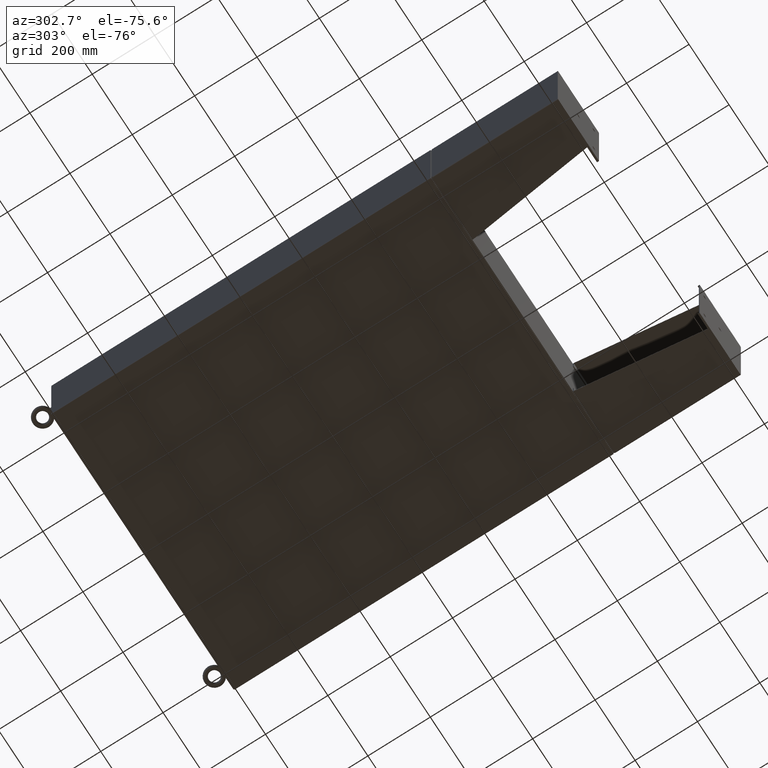
[diagram: clean part render]
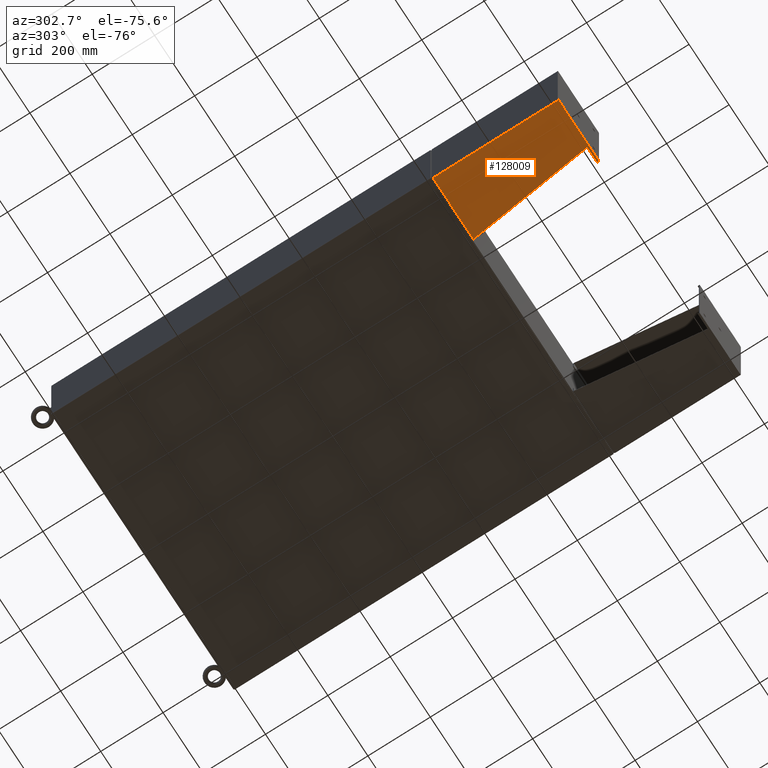
[diagram: same view with one face highlighted and labeled with its STEP entity id]
A machine part, auxiliary view. The second image highlights one B-rep face of the part: STEP entity #128009.
In plain terms, the highlighted planar face has unit normal (-0, -0, 1).
Its self-contained STEP definition (entity closure, byte-faithful):
#2268 = VERTEX_POINT ( 'NONE', #39058 ) ;
#3398 = DIRECTION ( 'NONE',  ( 3.550958521948298200E-015, 0.0000000000000000000, 1.000000000000000000 ) ) ;
#3908 = ORIENTED_EDGE ( 'NONE', *, *, #10160, .F. ) ;
#5866 = FACE_OUTER_BOUND ( 'NONE', #23664, .T. ) ;
#10160 = EDGE_CURVE ( 'NONE', #2268, #26961, #30270, .T. ) ;
#10242 = LINE ( 'NONE', #62286, #129850 ) ;
#12303 = CARTESIAN_POINT ( 'NONE',  ( 6.000000000000029300, -7.749999999999999100, 8.001000000000031400 ) ) ;
#16228 = EDGE_CURVE ( 'NONE', #36128, #26961, #24986, .T. ) ;
#17358 = CARTESIAN_POINT ( 'NONE',  ( 5.999999999999999100, -7.999999999999999100, 0.03900000000001453000 ) ) ;
#21102 = DIRECTION ( 'NONE',  ( 0.0000000000000000000, 0.0000000000000000000, 1.000000000000000000 ) ) ;
#23421 = LINE ( 'NONE', #17358, #104842 ) ;
#23664 = EDGE_LOOP ( 'NONE', ( #38884, #120748, #87951, #123379, #105865, #3908 ) ) ;
#24986 = LINE ( 'NONE', #63282, #116370 ) ;
#26230 = DIRECTION ( 'NONE',  ( 0.0000000000000000000, -1.000000000000000000, 0.0000000000000000000 ) ) ;
#26254 = LINE ( 'NONE', #38792, #135836 ) ;
#26961 = VERTEX_POINT ( 'NONE', #90291 ) ;
#30270 = LINE ( 'NONE', #45074, #80015 ) ;
#32850 = VERTEX_POINT ( 'NONE', #134992 ) ;
#35059 = PLANE ( 'NONE',  #60821 ) ;
#36128 = VERTEX_POINT ( 'NONE', #133405 ) ;
#38792 = CARTESIAN_POINT ( 'NONE',  ( 6.000000000000029300, -7.749999999999999100, 8.001000000000015400 ) ) ;
#38884 = ORIENTED_EDGE ( 'NONE', *, *, #72379, .F. ) ;
#39058 = CARTESIAN_POINT ( 'NONE',  ( 6.000000000000021300, -7.749999999999999100, 6.052216497445950700 ) ) ;
#41752 = VERTEX_POINT ( 'NONE', #12303 ) ;
#45074 = CARTESIAN_POINT ( 'NONE',  ( 6.000000000000022200, -7.749999999999999100, 6.052216497445950700 ) ) ;
#53121 = VECTOR ( 'NONE', #26230, 39.37007874015748100 ) ;
#56338 = CARTESIAN_POINT ( 'NONE',  ( 6.000000000000029300, -7.999999999999999100, 8.001000000000015400 ) ) ;
#56421 = LINE ( 'NONE', #57738, #53121 ) ;
#57738 = CARTESIAN_POINT ( 'NONE',  ( 6.000000000000029300, -7.999999999999999100, 8.001000000000015400 ) ) ;
#60821 = AXIS2_PLACEMENT_3D ( 'NONE', #56338, #67016, #3398 ) ;
#62286 = CARTESIAN_POINT ( 'NONE',  ( 6.000000000000029300, -7.999999999999999100, 8.001000000000015400 ) ) ;
#63282 = CARTESIAN_POINT ( 'NONE',  ( 6.000000000000013300, 7.857000000000001100, 0.03900000000001561900 ) ) ;
#67016 = DIRECTION ( 'NONE',  ( -1.000000000000000000, 0.0000000000000000000, 3.550958521948298200E-015 ) ) ;
#69291 = EDGE_CURVE ( 'NONE', #36128, #32850, #23421, .T. ) ;
#72379 = EDGE_CURVE ( 'NONE', #41752, #2268, #26254, .T. ) ;
#72959 = DIRECTION ( 'NONE',  ( -3.550958521948298200E-015, 0.0000000000000000000, -1.000000000000000000 ) ) ;
#80015 = VECTOR ( 'NONE', #119329, 39.37007874015748100 ) ;
#80487 = DIRECTION ( 'NONE',  ( -0.0000000000000000000, -1.000000000000000000, 0.0000000000000000000 ) ) ;
#87951 = ORIENTED_EDGE ( 'NONE', *, *, #90515, .T. ) ;
#90291 = CARTESIAN_POINT ( 'NONE',  ( 6.000000000000013300, 7.857000000000001100, 8.001000000000013700 ) ) ;
#90515 = EDGE_CURVE ( 'NONE', #103290, #32850, #10242, .T. ) ;
#93605 = EDGE_CURVE ( 'NONE', #41752, #103290, #56421, .T. ) ;
#98048 = CARTESIAN_POINT ( 'NONE',  ( 6.000000000000029300, -7.999999999999999100, 8.001000000000015400 ) ) ;
#103290 = VERTEX_POINT ( 'NONE', #98048 ) ;
#104842 = VECTOR ( 'NONE', #80487, 39.37007874015748100 ) ;
#105865 = ORIENTED_EDGE ( 'NONE', *, *, #16228, .T. ) ;
#116370 = VECTOR ( 'NONE', #21102, 39.37007874015748100 ) ;
#119329 = DIRECTION ( 'NONE',  ( 4.399772607369798900E-016, 0.9922942345449394800, 0.1239038017531047700 ) ) ;
#120748 = ORIENTED_EDGE ( 'NONE', *, *, #93605, .T. ) ;
#123379 = ORIENTED_EDGE ( 'NONE', *, *, #69291, .F. ) ;
#123746 = DIRECTION ( 'NONE',  ( -3.550958521948298200E-015, -0.0000000000000000000, -1.000000000000000000 ) ) ;
#128009 = ADVANCED_FACE ( 'NONE', ( #5866 ), #35059, .F. ) ;
#129850 = VECTOR ( 'NONE', #72959, 39.37007874015748100 ) ;
#133405 = CARTESIAN_POINT ( 'NONE',  ( 6.000000000000013300, 7.857000000000001100, 0.03900000000001453000 ) ) ;
#134992 = CARTESIAN_POINT ( 'NONE',  ( 6.000000000000000900, -7.999999999999993800, 0.03899999999999890400 ) ) ;
#135836 = VECTOR ( 'NONE', #123746, 39.37007874015748100 ) ;